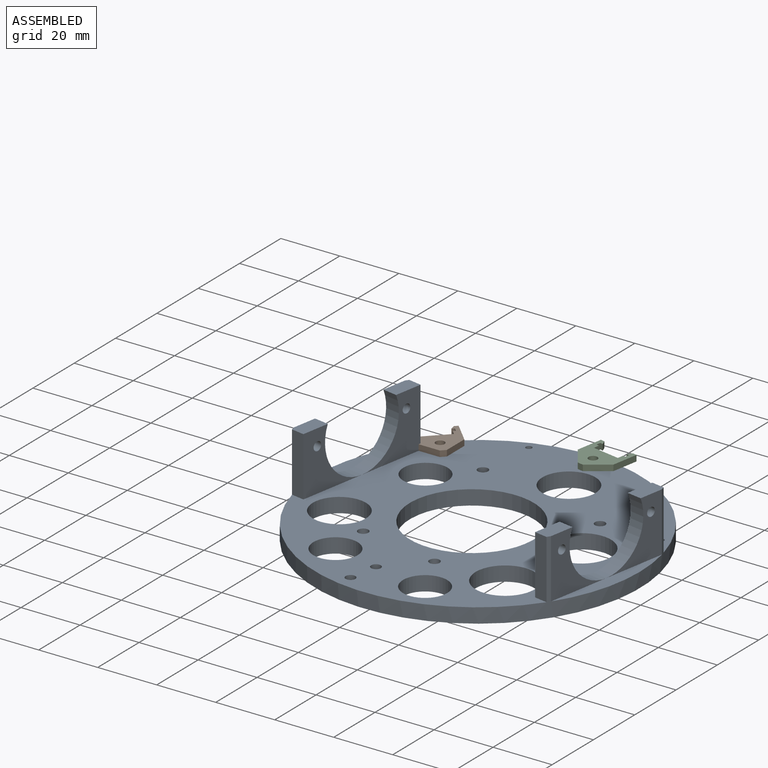
[diagram: assembled view]
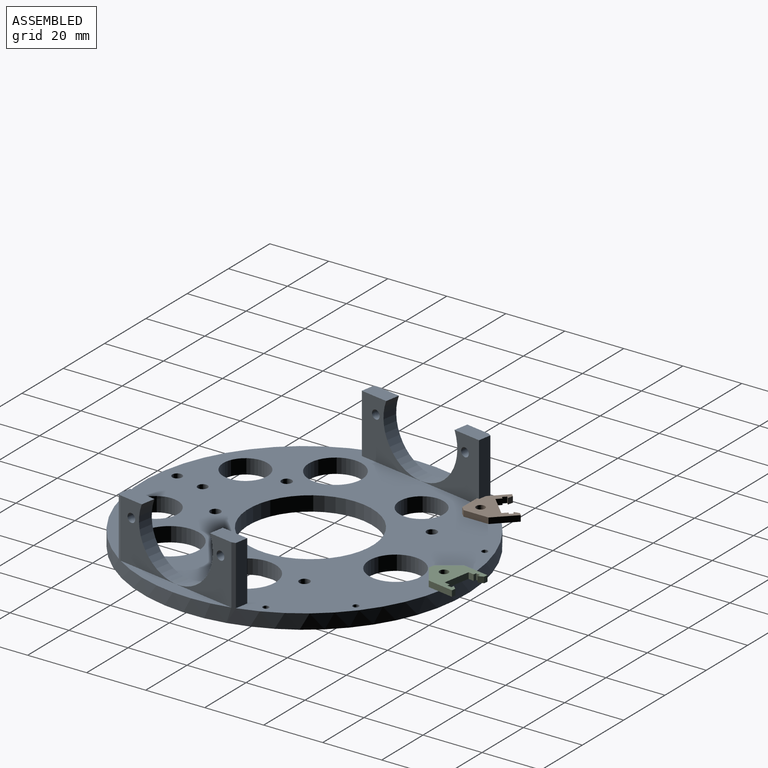
[diagram: assembled view, second angle]
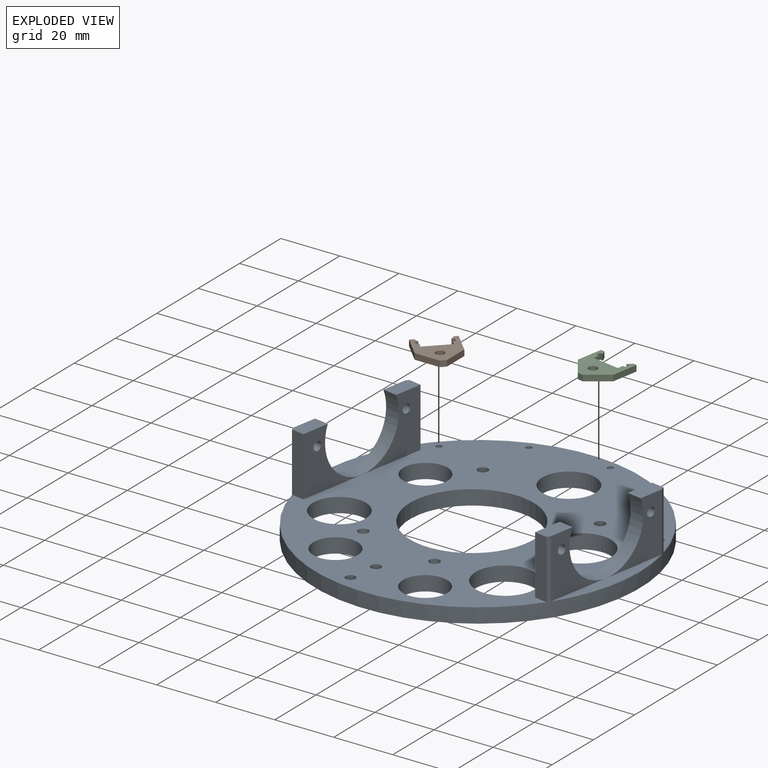
[diagram: exploded view]
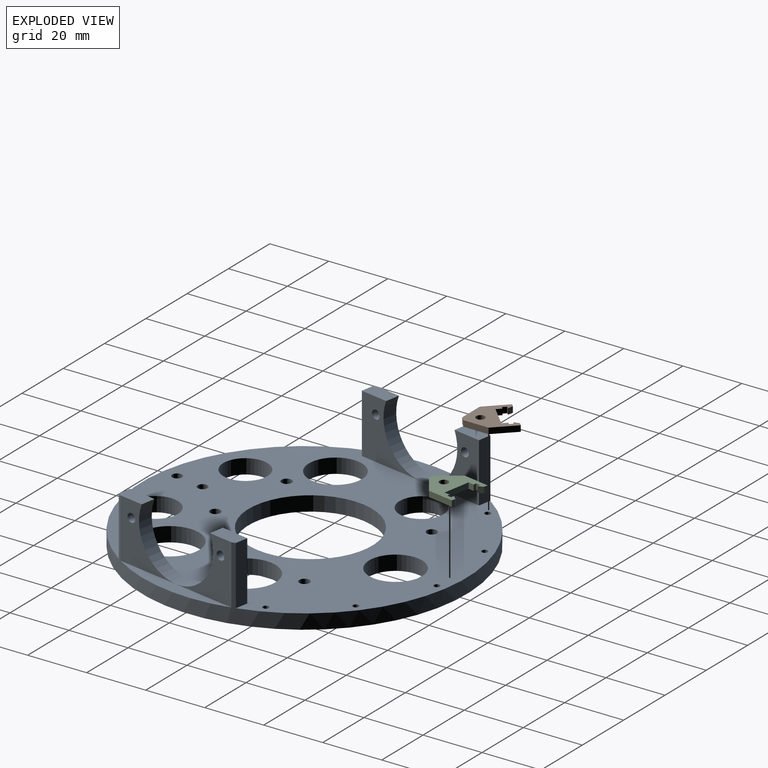
[diagram: exploded view, second angle]
ASSEMBLY  parts=3 mates=2
PART A: 46 faces, bbox 110x110x25 mm
  f0: plane 23x20mm, normal (1,0,0), area 210mm2, adj f8,f16,f17,f26,f27
  f1: plane 21.79x20mm, normal (-1,0,0), area 185.8mm2, adj f3,f11,f12,f26,f28
  f2: plane 21.79x20mm, normal (-1,0,0), area 185.8mm2, adj f11,f12,f17,f26,f27
  f3: plane 9.58x5mm, normal (0,0,1), area 47.6mm2, adj f1,f11,f14,f15,f26
  f4: plane 23x20mm, normal (-1,0,0), area 210mm2, adj f8,f20,f22,f23,f24
  f5: plane 21.79x20mm, normal (1,0,0), area 185.8mm2, adj f6,f7,f11,f23,f25
  f6: plane 9.58x5mm, normal (0,0,1), area 47.6mm2, adj f5,f11,f18,f19,f23
  f7: plane 43.58x4.5mm, normal (0,0,1), area 131.8mm2, adj f5,f11,f21
  f8: plane 110x99.92mm, normal (0,0,1), area 5656.8mm2, adj f0,f4,f9,f10,f11,f14,f15,f16
  f9: cylinder r=1.65mm len=5mm, axis (0,0,-1), area 51.8mm2, adj f8,f13
  f10: cylinder r=1.65mm len=5mm, axis (0,0,-1), area 51.8mm2, adj f8,f13
  f11: cylinder r=55mm len=110mm, axis (0,0,-1), area 1834mm2, adj f1,f2,f3,f5,f6,f7,f8,f12
  f12: plane 43.58x4.5mm, normal (0,0,1), area 131.8mm2, adj f1,f2,f11
  f13: plane 110x110mm, normal (0,0,-1), area 6379.2mm2, adj f9,f10,f11,f29,f30,f31,f32,f33
  f14: plane 23x20mm, normal (1,0,0), area 210mm2, adj f3,f8,f15,f26,f28
  f15: plane 20x4.46mm, normal (0,1,0), area 89.2mm2, adj f3,f8,f11,f14
  f16: plane 20x4.46mm, normal (0,-1,0), area 89.2mm2, adj f0,f8,f11,f17
  f17: plane 9.58x5mm, normal (0,0,1), area 47.6mm2, adj f0,f2,f11,f16,f26
  f18: plane 20x4.46mm, normal (0,1,0), area 89.2mm2, adj f6,f8,f11,f19
  f19: plane 23x20mm, normal (-1,0,0), area 210mm2, adj f6,f8,f18,f23,f25
  f20: plane 20x4.46mm, normal (0,-1,0), area 89.2mm2, adj f4,f8,f11,f22
  f21: plane 21.79x20mm, normal (1,0,0), area 185.8mm2, adj f7,f11,f22,f23,f24
  f22: plane 9.58x5mm, normal (0,0,1), area 47.6mm2, adj f4,f11,f20,f21,f23
  f23: cylinder r=14.5mm len=29mm, axis (-1,0,0), area 284.2mm2, adj f4,f5,f6,f19,f21,f22
  f24: cylinder r=1.5mm len=5mm, axis (-1,0,0), area 47.1mm2, adj f4,f21
  f25: cylinder r=1.5mm len=5mm, axis (-1,0,0), area 47.1mm2, adj f5,f19
  f26: cylinder r=14.5mm len=29mm, axis (-1,0,0), area 284.2mm2, adj f0,f1,f2,f3,f14,f17
  f27: cylinder r=1.5mm len=5mm, axis (-1,0,0), area 47.1mm2, adj f0,f2
  f28: cylinder r=1.5mm len=5mm, axis (-1,0,0), area 47.1mm2, adj f1,f14
  f29: cylinder r=1.75mm len=5mm, axis (0,0,1), area 55mm2, adj f8,f13
  f30: cylinder r=1.75mm len=5mm, axis (0,0,1), area 55mm2, adj f8,f13
  f31: cylinder r=1.75mm len=5mm, axis (0,0,1), area 55mm2, adj f8,f13
  f32: cylinder r=1.75mm len=5mm, axis (0,0,1), area 55mm2, adj f8,f13
  f33: cylinder r=1mm len=5mm, axis (0,0,1), area 31.4mm2, adj f8,f13
  f34: cylinder r=1mm len=5mm, axis (0,0,1), area 31.4mm2, adj f8,f13
  f35: cylinder r=1mm len=5mm, axis (0,0,1), area 31.4mm2, adj f8,f13
  f36: cylinder r=1mm len=5mm, axis (0,0,1), area 31.4mm2, adj f8,f13
  f37: cylinder r=1mm len=5mm, axis (0,0,1), area 31.4mm2, adj f8,f13
  f38: cylinder r=21mm len=42mm, axis (0,0,1), area 659.7mm2, adj f8,f13
  f39: cylinder r=7.5mm len=15mm, axis (0,0,1), area 235.6mm2, adj f8,f13
  f40: cylinder r=7.5mm len=15mm, axis (0,0,1), area 235.6mm2, adj f8,f13
  f41: cylinder r=10mm len=20mm, axis (0,0,1), area 314.2mm2, adj f8,f13
  f42: cylinder r=9mm len=18mm, axis (0,0,1), area 282.7mm2, adj f8,f13
  f43: cylinder r=10mm len=20mm, axis (0,0,1), area 314.2mm2, adj f8,f13
  f44: cylinder r=9mm len=18mm, axis (0,0,1), area 282.7mm2, adj f8,f13
  f45: cylinder r=7.5mm len=15mm, axis (0,0,1), area 235.6mm2, adj f8,f13
PART B: 21 faces, bbox 14x15.1x2 mm
  f0: plane 2x2mm, normal (1,0,0), area 4mm2, adj f1,f17,f19,f20
  f1: plane 2x1mm, normal (0,1,0), area 2mm2, adj f0,f2,f19,f20
  f2: plane 2x1.5mm, normal (1,0,0), area 3mm2, adj f1,f3,f19,f20
  f3: plane 2x1mm, normal (0,-1,0), area 2mm2, adj f2,f4,f19,f20
  f4: plane 2x1.6mm, normal (0.85,0.53,0), area 3.8mm2, adj f3,f5,f19,f20
  f5: plane 2x1.35mm, normal (0,1,0), area 2.7mm2, adj f4,f6,f19,f20
  f6: plane 9.1x2mm, normal (-1,0,0), area 18.2mm2, adj f5,f7,f19,f20
  f7: plane 6x6mm, normal (-0.71,-0.71,0), area 17mm2, adj f6,f8,f19,f20
  f8: plane 2x2mm, normal (0,-1,0), area 4mm2, adj f7,f9,f19,f20
  f9: plane 6x6mm, normal (0.71,-0.71,0), area 17mm2, adj f8,f10,f19,f20
  f10: plane 9.1x2mm, normal (1,0,0), area 18.2mm2, adj f9,f11,f19,f20
  f11: plane 2x1.35mm, normal (0,1,0), area 2.7mm2, adj f10,f12,f19,f20
  f12: plane 2x1.6mm, normal (-0.85,0.53,0), area 3.8mm2, adj f11,f13,f19,f20
  f13: plane 2x1mm, normal (0,-1,0), area 2mm2, adj f12,f14,f19,f20
  f14: plane 2x1.5mm, normal (-1,0,0), area 3mm2, adj f13,f15,f19,f20
  f15: plane 2x0.9mm, normal (0,1,0), area 1.8mm2, adj f14,f16,f19,f20
  f16: plane 2x2mm, normal (-1,0,0), area 4mm2, adj f15,f17,f19,f20
  f17: plane 9.4x2mm, normal (0,1,0), area 18.8mm2, adj f0,f16,f19,f20
  f18: cylinder r=1.5mm len=3mm, axis (0,0,-1), area 18.8mm2, adj f19,f20
  f19: plane 15.1x14mm, normal (0,0,1), area 116.1mm2, adj f0,f1,f2,f3,f4,f5,f6,f7
  f20: plane 15.1x14mm, normal (0,0,-1), area 116.1mm2, adj f0,f1,f2,f3,f4,f5,f6,f7
PART C: same geometry as B
PLACE A rot(axis=(0,0,-1),10deg) t=(-38.56,-15.17,4.03)mm
PLACE B rot(axis=(0,0,1),45deg) t=(-80.13,23.83,9.03)mm
PLACE C rot(axis=(0,0,-1),10deg) t=(-33.37,41.8,9.03)mm
MATE parallel C.f18 <-> A.f35  axis (0,0,-1) through (-34.58,34.9,9.03)mm
MATE parallel B.f18 <-> A.f37  axis (0,0,-1) through (-75.18,18.88,9.03)mm
